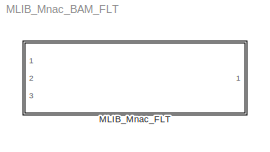
MODEL MLIB_Mnac_BAM_FLT
KIND model
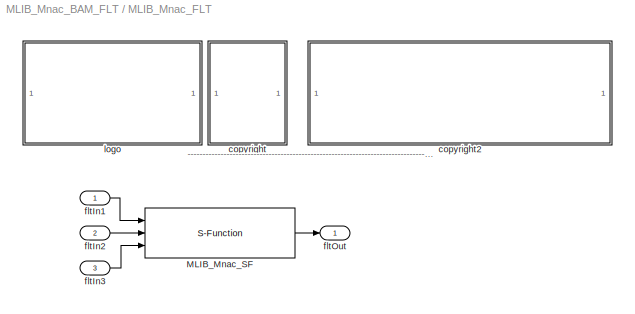
BLOCK [SubSystem] MLIB_Mnac_FLT
  Ports = [3, 1]
  RequestExecContextInheritance = off
  SID = 1
BLOCK [S-Function] MLIB_Mnac_FLT/MLIB_Mnac_SF
  EnableBusSupport = off
  FunctionName = MLIB_Mnac_SF_FLT
  Ports = [3, 1]
  SID = 5
BLOCK [SubSystem] MLIB_Mnac_FLT/<copyright redacted>
  Ports = []
  RequestExecContextInheritance = off
  SID = 6
BLOCK [SubSystem] MLIB_Mnac_FLT/copyright2
  Ports = []
  RequestExecContextInheritance = off
  SID = 7
BLOCK [Inport] MLIB_Mnac_FLT/fltIn1
  IconDisplay = Port number
  SID = 2
BLOCK [Inport] MLIB_Mnac_FLT/fltIn2
  IconDisplay = Port number
  Port = 2
  SID = 3
BLOCK [Inport] MLIB_Mnac_FLT/fltIn3
  IconDisplay = Port number
  Port = 3
  SID = 4
BLOCK [Outport] MLIB_Mnac_FLT/fltOut
  IconDisplay = Port number
  SID = 9
BLOCK [SubSystem] MLIB_Mnac_FLT/logo
  Ports = []
  RequestExecContextInheritance = off
  SID = 8
ANNOTATION MLIB_Mnac_FLT: ---------------------------------------------------------------------------------------------------------------------------------------------------------------------------------------------------
LINE MLIB_Mnac_FLT/MLIB_Mnac_SF:1 -> MLIB_Mnac_FLT/fltOut:1
LINE MLIB_Mnac_FLT/fltIn1:1 -> MLIB_Mnac_FLT/MLIB_Mnac_SF:1
LINE MLIB_Mnac_FLT/fltIn2:1 -> MLIB_Mnac_FLT/MLIB_Mnac_SF:2
LINE MLIB_Mnac_FLT/fltIn3:1 -> MLIB_Mnac_FLT/MLIB_Mnac_SF:3
